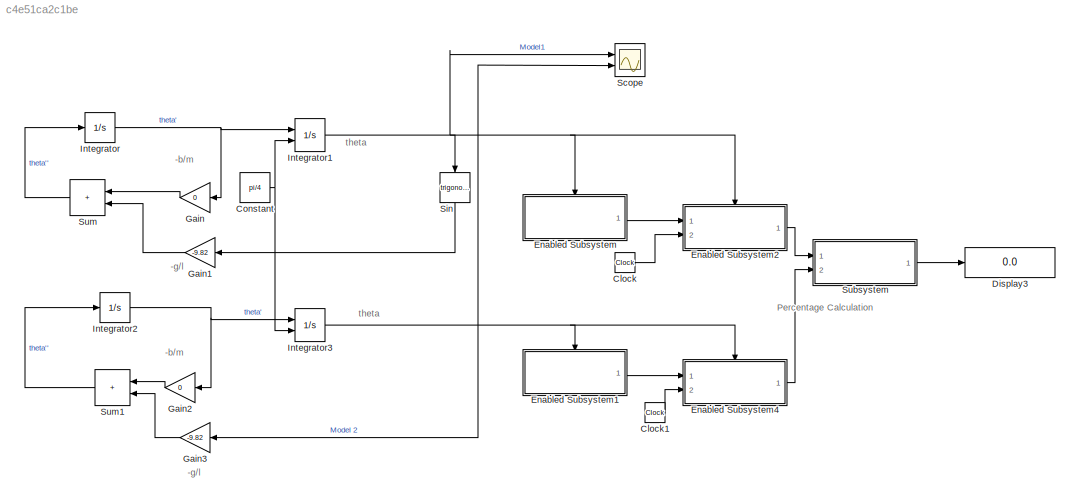
MODEL slx_c4e51ca2c1be
KIND model
CONFIG AbsTol = auto
CONFIG EnableMultiTasking = off
CONFIG FixedStep = auto
CONFIG MaxStep = auto
CONFIG MinStep = auto
CONFIG RelTol = 1e-3
CONFIG SampleTimeConstraint = Unconstrained
CONFIG Solver = VariableStepAuto
CONFIG SolverName = VariableStepAuto
CONFIG StartTime = 0.0
CONFIG StopTime = 500
BLOCK [Clock] Clock
BLOCK [Clock] Clock1
BLOCK [Constant] Constant
  Value = pi/4
BLOCK [Display] Display3
  Decimation = 1
  Ports = [1]
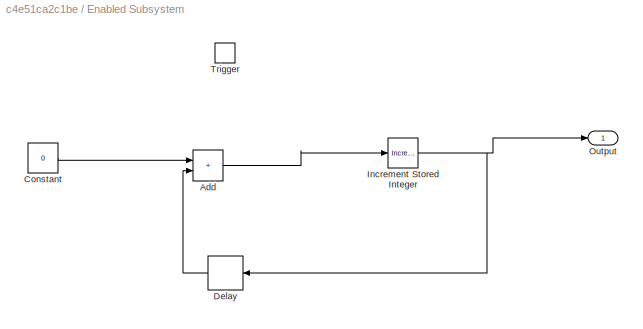
BLOCK [SubSystem] Enabled Subsystem
  Ports = [0, 1, 0, 1]
  RequestExecContextInheritance = off
  TreatAsAtomicUnit = on
BLOCK [Sum] Enabled Subsystem/Add
  IconShape = rectangular
  Ports = [2, 1]
BLOCK [Constant] Enabled Subsystem/Constant
  Value = 0
BLOCK [Delay] Enabled Subsystem/Delay
  DelayLength = 1
  InputPortMap = u0
  NameLocation = top
  Ports = [1, 1]
BLOCK [Reference] Enabled Subsystem/Increment Stored Integer  REF=simulink/Additional Math
& Discrete/Additional Math:
Increment - Decrement/Increment
Stored Integer
  Ports = [1, 1]
  SourceBlock = simulink/Additional Math\n& Discrete/Additional Math:\nIncrement - Decrement/Increment\nStored Integer
  SourceProductBaseCode = SL
  SourceType = Stored Integer Value Increment
BLOCK [Outport] Enabled Subsystem/Output
BLOCK [TriggerPort] Enabled Subsystem/Trigger
  PortDimensions = 1
  Ports = []
  StatesWhenEnabling = held
  VariantControl = Variant
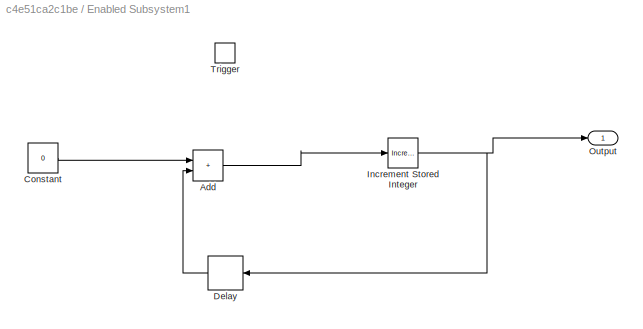
BLOCK [SubSystem] Enabled Subsystem1
  Ports = [0, 1, 0, 1]
  RequestExecContextInheritance = off
  TreatAsAtomicUnit = on
BLOCK [Sum] Enabled Subsystem1/Add
  IconShape = rectangular
  Ports = [2, 1]
BLOCK [Constant] Enabled Subsystem1/Constant
  Value = 0
BLOCK [Delay] Enabled Subsystem1/Delay
  DelayLength = 1
  InputPortMap = u0
  NameLocation = top
  Ports = [1, 1]
BLOCK [Reference] Enabled Subsystem1/Increment Stored Integer  REF=simulink/Additional Math
& Discrete/Additional Math:
Increment - Decrement/Increment
Stored Integer
  Ports = [1, 1]
  SourceBlock = simulink/Additional Math\n& Discrete/Additional Math:\nIncrement - Decrement/Increment\nStored Integer
  SourceProductBaseCode = SL
  SourceType = Stored Integer Value Increment
BLOCK [Outport] Enabled Subsystem1/Output
BLOCK [TriggerPort] Enabled Subsystem1/Trigger
  PortDimensions = 1
  Ports = []
  StatesWhenEnabling = held
  VariantControl = Variant
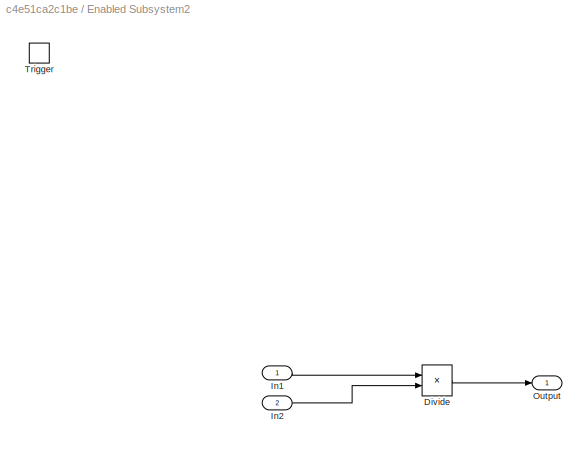
BLOCK [SubSystem] Enabled Subsystem2
  Ports = [2, 1, 0, 1]
  RequestExecContextInheritance = off
  TreatAsAtomicUnit = on
BLOCK [Product] Enabled Subsystem2/Divide
  Inputs = */
  Ports = [2, 1]
BLOCK [Inport] Enabled Subsystem2/In1
BLOCK [Inport] Enabled Subsystem2/In2
  Port = 2
BLOCK [Outport] Enabled Subsystem2/Output
BLOCK [TriggerPort] Enabled Subsystem2/Trigger
  PortDimensions = 1
  Ports = []
  StatesWhenEnabling = held
  VariantControl = Variant
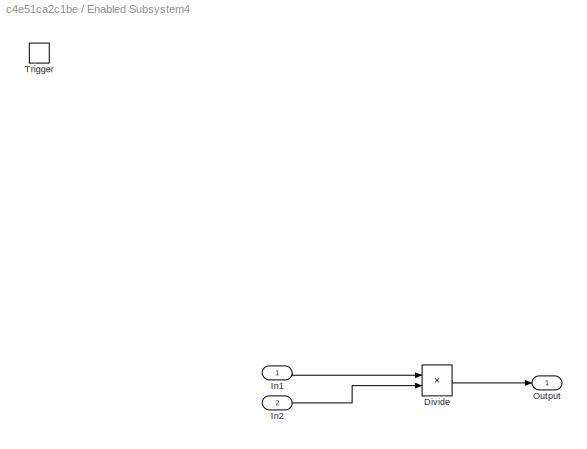
BLOCK [SubSystem] Enabled Subsystem4
  Ports = [2, 1, 0, 1]
  RequestExecContextInheritance = off
  TreatAsAtomicUnit = on
BLOCK [Product] Enabled Subsystem4/Divide
  Inputs = */
  Ports = [2, 1]
BLOCK [Inport] Enabled Subsystem4/In1
BLOCK [Inport] Enabled Subsystem4/In2
  Port = 2
BLOCK [Outport] Enabled Subsystem4/Output
BLOCK [TriggerPort] Enabled Subsystem4/Trigger
  PortDimensions = 1
  Ports = []
  StatesWhenEnabling = held
  VariantControl = Variant
BLOCK [Gain] Gain
  Gain = 0
  NameLocation = top
BLOCK [Gain] Gain1
  Gain = -9.82
  NameLocation = top
BLOCK [Gain] Gain2
  Gain = 0
  NameLocation = top
BLOCK [Gain] Gain3
  Gain = -9.82
  NameLocation = top
BLOCK [Integrator] Integrator
  Ports = [1, 1]
BLOCK [Integrator] Integrator1
  InitialConditionSource = external
  Ports = [2, 1]
BLOCK [Integrator] Integrator2
  Ports = [1, 1]
BLOCK [Integrator] Integrator3
  InitialConditionSource = external
  Ports = [2, 1]
BLOCK [Scope] Scope
  Floating = off
  NumInputPorts = 2
  Ports = [2]
  ScopeSpecificationString = Simulink.scopes.TimeScopeBlockCfg('CurrentConfiguration', extmgr.ConfigurationSet(extmgr.Configuration('Core','General UI',true),extmgr.Configuration('Core','Source UI',true),extmgr.Configuration('Sources','WiredSimulink',true),extmgr.Configuration('Visuals','Time Domain',true,'SerializedDisplays',{struct('MinYLimReal','-0.98318','MaxYLimReal','0.98282','YLabelReal','','MinYLimMag','0.00000','MaxY...<+1450ch>
BLOCK [Trigonometry] Sin
  NameLocation = left
  Ports = [1, 1]
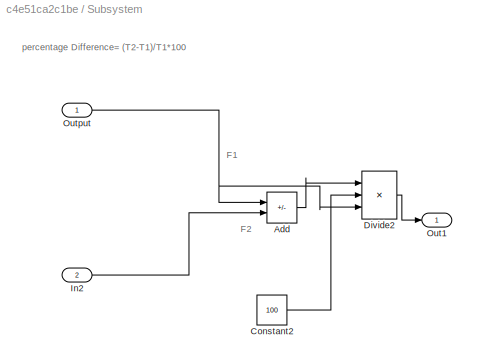
BLOCK [SubSystem] Subsystem
  Ports = [2, 1]
  RequestExecContextInheritance = off
BLOCK [Sum] Subsystem/Add
  IconShape = rectangular
  Inputs = -+
  Ports = [2, 1]
BLOCK [Constant] Subsystem/Constant2
  Value = 100
BLOCK [Product] Subsystem/Divide2
  Inputs = **/
  Ports = [3, 1]
BLOCK [Inport] Subsystem/In2
  Port = 2
BLOCK [Outport] Subsystem/Out1
BLOCK [Inport] Subsystem/Output
BLOCK [Sum] Sum
  IconShape = rectangular
  Inputs = |++
  NameLocation = top
  Ports = [2, 1]
BLOCK [Sum] Sum1
  IconShape = rectangular
  Inputs = |++
  NameLocation = top
  Ports = [2, 1]
ANNOTATION (root): -b/m
ANNOTATION (root): -g/l
ANNOTATION (root): Percentage Calculation
ANNOTATION (root): theta
ANNOTATION Subsystem: percentage Difference= (T2-T1)/T1*100
ANNOTATION Subsystem: F1
ANNOTATION Subsystem: F2
LINE Clock1:1 -> Enabled Subsystem4:2
LINE Clock:1 -> Enabled Subsystem2:2
NET Constant:1 -> Integrator1:2, Integrator3:2
LINE Enabled Subsystem/Add:1 -> Enabled Subsystem/Increment Stored Integer:1
LINE Enabled Subsystem/Constant:1 -> Enabled Subsystem/Add:1
LINE Enabled Subsystem/Delay:1 -> Enabled Subsystem/Add:2
NET Enabled Subsystem/Increment Stored Integer:1 -> Enabled Subsystem/Delay:1, Enabled Subsystem/Output:1
LINE Enabled Subsystem1/Add:1 -> Enabled Subsystem1/Increment Stored Integer:1
LINE Enabled Subsystem1/Constant:1 -> Enabled Subsystem1/Add:1
LINE Enabled Subsystem1/Delay:1 -> Enabled Subsystem1/Add:2
NET Enabled Subsystem1/Increment Stored Integer:1 -> Enabled Subsystem1/Delay:1, Enabled Subsystem1/Output:1
LINE Enabled Subsystem1:1 -> Enabled Subsystem4:1
LINE Enabled Subsystem2/Divide:1 -> Enabled Subsystem2/Output:1
LINE Enabled Subsystem2/In1:1 -> Enabled Subsystem2/Divide:1
LINE Enabled Subsystem2/In2:1 -> Enabled Subsystem2/Divide:2
LINE Enabled Subsystem2:1 -> Subsystem:1
LINE Enabled Subsystem4/Divide:1 -> Enabled Subsystem4/Output:1
LINE Enabled Subsystem4/In1:1 -> Enabled Subsystem4/Divide:1
LINE Enabled Subsystem4/In2:1 -> Enabled Subsystem4/Divide:2
LINE Enabled Subsystem4:1 -> Subsystem:2
LINE Enabled Subsystem:1 -> Enabled Subsystem2:1
LINE Gain1:1 -> Sum:2
LINE Gain2:1 -> Sum1:1
LINE Gain3:1 -> Sum1:2
LINE Gain:1 -> Sum:1
NET Integrator1:1 -> Enabled Subsystem2:trigger, Enabled Subsystem:trigger, Scope:1, Sin:1
NET Integrator2:1 -> Gain2:1, Integrator3:1
NET Integrator3:1 -> Enabled Subsystem1:trigger, Enabled Subsystem4:trigger, Gain3:1, Scope:2
NET Integrator:1 -> Gain:1, Integrator1:1
LINE Sin:1 -> Gain1:1
LINE Subsystem/Add:1 -> Subsystem/Divide2:1
LINE Subsystem/Constant2:1 -> Subsystem/Divide2:2
LINE Subsystem/Divide2:1 -> Subsystem/Out1:1
LINE Subsystem/In2:1 -> Subsystem/Add:2
NET Subsystem/Output:1 -> Subsystem/Add:1, Subsystem/Divide2:3
LINE Subsystem:1 -> Display3:1
LINE Sum1:1 -> Integrator2:1
LINE Sum:1 -> Integrator:1
note: NET lines group one-source signal fan-out (src -> all destinations, sorted); 1:1 wires keep LINE
